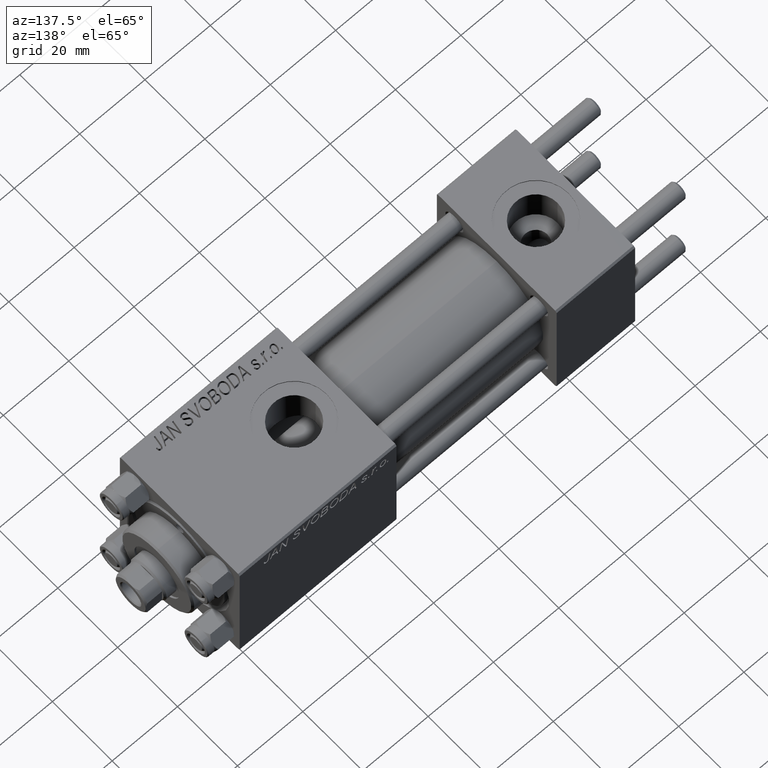
[diagram: clean part render]
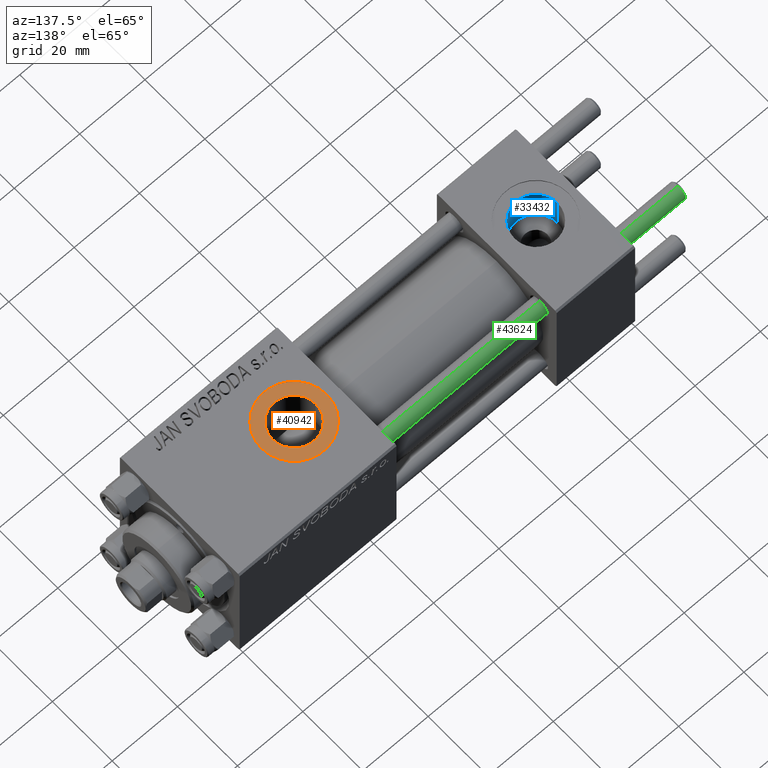
[diagram: same view with three faces highlighted in distinct colors, each labeled with its STEP entity id]
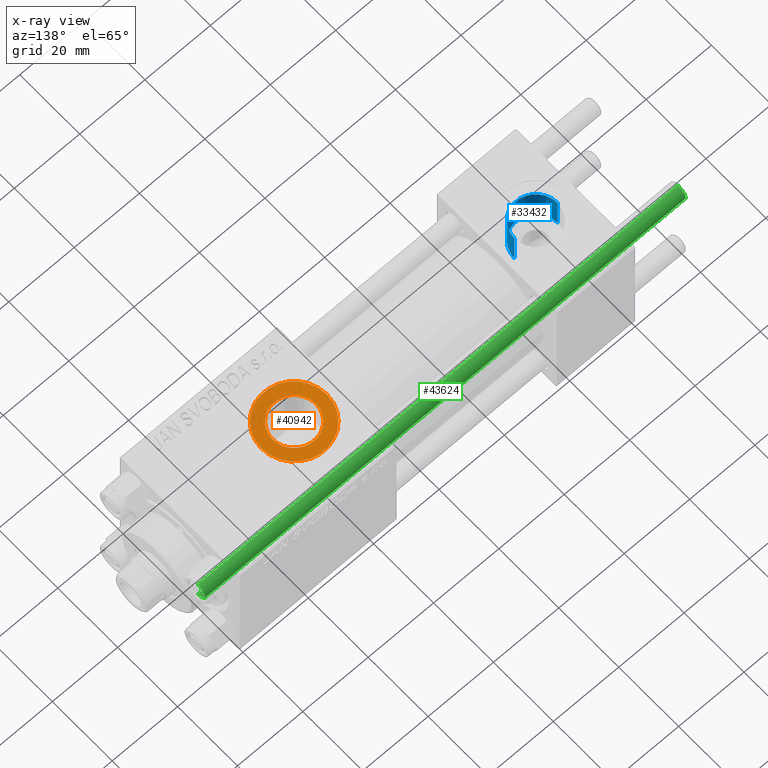
[diagram: x-ray of the same camera — body ghosted, the three highlighted faces saturated]
A machine part, auxiliary view with three faces highlighted in distinct colors.
The next image is the same camera in x-ray (body ghosted, the three faces saturated) — at least one of them is partly hidden behind the body in this view.
Their STEP definitions:

[orange] entity #40942 — the highlighted planar face has unit normal (0, 0, 1).
#3810 = VERTEX_POINT ( 'NONE', #20548 ) ;
#3993 = AXIS2_PLACEMENT_3D ( 'NONE', #5801, #17676, #21204 ) ;
#5214 = VERTEX_POINT ( 'NONE', #32572 ) ;
#5801 = CARTESIAN_POINT ( 'NONE',  ( 86.00000000000000000, -1.734723475976806897E-15, 19.80000000000000071 ) ) ;
#6778 = CIRCLE ( 'NONE', #7579, 10.00000000000000888 ) ;
#7579 = AXIS2_PLACEMENT_3D ( 'NONE', #11191, #34426, #15711 ) ;
#8215 = CARTESIAN_POINT ( 'NONE',  ( 86.00000000000000000, -1.734723475976806897E-15, 19.80000000000000071 ) ) ;
#8473 = CIRCLE ( 'NONE', #17333, 6.580000000000002736 ) ;
#8552 = ORIENTED_EDGE ( 'NONE', *, *, #16150, .T. ) ;
#9788 = ORIENTED_EDGE ( 'NONE', *, *, #32475, .T. ) ;
#10211 = PLANE ( 'NONE',  #33102 ) ;
#10231 = EDGE_LOOP ( 'NONE', ( #32643, #9788 ) ) ;
#10286 = EDGE_CURVE ( 'NONE', #41007, #3810, #8473, .T. ) ;
#11191 = CARTESIAN_POINT ( 'NONE',  ( 86.00000000000000000, -1.734723475976806897E-15, 19.80000000000000071 ) ) ;
#12359 = CARTESIAN_POINT ( 'NONE',  ( 79.42000000000000171, -1.734723475976806897E-15, 19.80000000000000071 ) ) ;
#12385 = ORIENTED_EDGE ( 'NONE', *, *, #38247, .T. ) ;
#12978 = DIRECTION ( 'NONE',  ( 0.000000000000000000, 0.000000000000000000, 1.000000000000000000 ) ) ;
#13652 = CIRCLE ( 'NONE', #3993, 10.00000000000000888 ) ;
#15711 = DIRECTION ( 'NONE',  ( 1.000000000000000000, 0.000000000000000000, 0.000000000000000000 ) ) ;
#16150 = EDGE_CURVE ( 'NONE', #27279, #5214, #6778, .T. ) ;
#17333 = AXIS2_PLACEMENT_3D ( 'NONE', #33303, #29503, #37331 ) ;
#17676 = DIRECTION ( 'NONE',  ( 0.000000000000000000, 0.000000000000000000, 1.000000000000000000 ) ) ;
#20548 = CARTESIAN_POINT ( 'NONE',  ( 92.58000000000001251, -9.289058821378482497E-16, 19.80000000000000071 ) ) ;
#21204 = DIRECTION ( 'NONE',  ( 1.000000000000000000, 0.000000000000000000, 0.000000000000000000 ) ) ;
#21853 = EDGE_LOOP ( 'NONE', ( #8552, #12385 ) ) ;
#21904 = CARTESIAN_POINT ( 'NONE',  ( 96.00000000000001421, -1.734723475976806897E-15, 19.80000000000000071 ) ) ;
#24105 = DIRECTION ( 'NONE',  ( 1.000000000000000000, 0.000000000000000000, 0.000000000000000000 ) ) ;
#24892 = CIRCLE ( 'NONE', #49905, 6.580000000000002736 ) ;
#25345 = DIRECTION ( 'NONE',  ( 1.000000000000000000, 0.000000000000000000, -0.000000000000000000 ) ) ;
#27279 = VERTEX_POINT ( 'NONE', #21904 ) ;
#27647 = DIRECTION ( 'NONE',  ( -0.000000000000000000, -0.000000000000000000, -1.000000000000000000 ) ) ;
#29503 = DIRECTION ( 'NONE',  ( -0.000000000000000000, -0.000000000000000000, -1.000000000000000000 ) ) ;
#32475 = EDGE_CURVE ( 'NONE', #3810, #41007, #24892, .T. ) ;
#32572 = CARTESIAN_POINT ( 'NONE',  ( 76.00000000000000000, -5.100766768294525560E-16, 19.80000000000000071 ) ) ;
#32643 = ORIENTED_EDGE ( 'NONE', *, *, #10286, .T. ) ;
#33102 = AXIS2_PLACEMENT_3D ( 'NONE', #48574, #12978, #25345 ) ;
#33188 = FACE_OUTER_BOUND ( 'NONE', #21853, .T. ) ;
#33303 = CARTESIAN_POINT ( 'NONE',  ( 86.00000000000000000, -1.734723475976806897E-15, 19.80000000000000071 ) ) ;
#34426 = DIRECTION ( 'NONE',  ( 0.000000000000000000, 0.000000000000000000, 1.000000000000000000 ) ) ;
#37331 = DIRECTION ( 'NONE',  ( 1.000000000000000000, 0.000000000000000000, 0.000000000000000000 ) ) ;
#38247 = EDGE_CURVE ( 'NONE', #5214, #27279, #13652, .T. ) ;
#40505 = FACE_BOUND ( 'NONE', #10231, .T. ) ;
#40942 = ADVANCED_FACE ( 'NONE', ( #40505, #33188 ), #10211, .T. ) ;
#41007 = VERTEX_POINT ( 'NONE', #12359 ) ;
#48574 = CARTESIAN_POINT ( 'NONE',  ( 86.00000000000000000, -1.734723475976806897E-15, 19.80000000000000071 ) ) ;
#49905 = AXIS2_PLACEMENT_3D ( 'NONE', #8215, #27647, #24105 ) ;

[blue] entity #33432 — the highlighted cylindrical surface (edge-blend (fillet) strip) has radius 6.58 mm, axis along (0, 0, 1).
#1486 = LINE ( 'NONE', #40877, #28375 ) ;
#3811 = CARTESIAN_POINT ( 'NONE',  ( 12.00000000000000000, 1.540743955509788682E-30, 9.199999999999995737 ) ) ;
#5633 = DIRECTION ( 'NONE',  ( 0.000000000000000000, 0.000000000000000000, 1.000000000000000000 ) ) ;
#5885 = DIRECTION ( 'NONE',  ( 1.000000000000000000, 0.000000000000000000, 0.000000000000000000 ) ) ;
#6818 = AXIS2_PLACEMENT_3D ( 'NONE', #41961, #7363, #22755 ) ;
#7363 = DIRECTION ( 'NONE',  ( -0.000000000000000000, -0.000000000000000000, -1.000000000000000000 ) ) ;
#8983 = VERTEX_POINT ( 'NONE', #9625 ) ;
#9521 = EDGE_CURVE ( 'NONE', #12105, #43808, #43143, .T. ) ;
#9625 = CARTESIAN_POINT ( 'NONE',  ( 5.420000000000000817, 8.058175938389596335E-16, 9.165987261146492315 ) ) ;
#11393 = DIRECTION ( 'NONE',  ( 1.000000000000000000, 0.000000000000000000, 0.000000000000000000 ) ) ;
#12105 = VERTEX_POINT ( 'NONE', #16608 ) ;
#12120 = FACE_OUTER_BOUND ( 'NONE', #32367, .T. ) ;
#15229 = DIRECTION ( 'NONE',  ( -0.000000000000000000, -0.000000000000000000, 1.000000000000000000 ) ) ;
#16388 = ORIENTED_EDGE ( 'NONE', *, *, #17774, .T. ) ;
#16608 = CARTESIAN_POINT ( 'NONE',  ( 5.420000000000000817, 8.058175938389596335E-16, 19.79999999999999716 ) ) ;
#17774 = EDGE_CURVE ( 'NONE', #19961, #8983, #32601, .T. ) ;
#19961 = VERTEX_POINT ( 'NONE', #21445 ) ;
#21445 = CARTESIAN_POINT ( 'NONE',  ( 18.57999999999999829, 1.540743955509788682E-30, 9.165987261146492315 ) ) ;
#22755 = DIRECTION ( 'NONE',  ( 1.000000000000000000, 0.000000000000000000, 0.000000000000000000 ) ) ;
#22987 = EDGE_CURVE ( 'NONE', #19961, #43808, #49828, .T. ) ;
#23778 = AXIS2_PLACEMENT_3D ( 'NONE', #36709, #5633, #5885 ) ;
#27050 = VECTOR ( 'NONE', #15229, 1000.000000000000000 ) ;
#27520 = CYLINDRICAL_SURFACE ( 'NONE', #36216, 6.579999999999999183 ) ;
#28375 = VECTOR ( 'NONE', #36327, 1000.000000000000000 ) ;
#32367 = EDGE_LOOP ( 'NONE', ( #16388, #37030, #41569, #44719 ) ) ;
#32601 = CIRCLE ( 'NONE', #6818, 6.579999999999999183 ) ;
#32712 = CARTESIAN_POINT ( 'NONE',  ( 18.57999999999999829, 1.540743955509788682E-30, 19.79999999999999716 ) ) ;
#33432 = ADVANCED_FACE ( 'NONE', ( #12120 ), #27520, .F. ) ;
#36216 = AXIS2_PLACEMENT_3D ( 'NONE', #3811, #45739, #11393 ) ;
#36327 = DIRECTION ( 'NONE',  ( -0.000000000000000000, -0.000000000000000000, 1.000000000000000000 ) ) ;
#36709 = CARTESIAN_POINT ( 'NONE',  ( 12.00000000000000000, 1.540743955509788682E-30, 19.79999999999999716 ) ) ;
#37030 = ORIENTED_EDGE ( 'NONE', *, *, #44757, .T. ) ;
#40877 = CARTESIAN_POINT ( 'NONE',  ( 5.420000000000000817, 8.058175938389596335E-16, 9.199999999999995737 ) ) ;
#41569 = ORIENTED_EDGE ( 'NONE', *, *, #9521, .T. ) ;
#41961 = CARTESIAN_POINT ( 'NONE',  ( 12.00000000000000000, 1.540743955509788682E-30, 9.165987261146492315 ) ) ;
#42490 = CARTESIAN_POINT ( 'NONE',  ( 18.57999999999999829, 1.540743955509788682E-30, 9.199999999999995737 ) ) ;
#43143 = CIRCLE ( 'NONE', #23778, 6.579999999999999183 ) ;
#43808 = VERTEX_POINT ( 'NONE', #32712 ) ;
#44719 = ORIENTED_EDGE ( 'NONE', *, *, #22987, .F. ) ;
#44757 = EDGE_CURVE ( 'NONE', #8983, #12105, #1486, .T. ) ;
#45739 = DIRECTION ( 'NONE',  ( -0.000000000000000000, -0.000000000000000000, 1.000000000000000000 ) ) ;
#49828 = LINE ( 'NONE', #42490, #27050 ) ;

[green] entity #43624 — the highlighted cylindrical surface (edge-blend (fillet) strip) has radius 2.5 mm, axis along (-1, -0, -0).
#3762 = CARTESIAN_POINT ( 'NONE',  ( 0.000000000000000000, 0.000000000000000000, 0.5000000000000004441 ) ) ;
#4010 = ORIENTED_EDGE ( 'NONE', *, *, #10004, .T. ) ;
#5681 = VECTOR ( 'NONE', #43781, 1000.000000000000000 ) ;
#6585 = DIRECTION ( 'NONE',  ( -0.000000000000000000, -0.000000000000000000, -1.000000000000000000 ) ) ;
#9428 = CARTESIAN_POINT ( 'NONE',  ( -2.500000000000000000, 0.000000000000000000, 0.5000000000000004441 ) ) ;
#10004 = EDGE_CURVE ( 'NONE', #19017, #11506, #32665, .T. ) ;
#11506 = VERTEX_POINT ( 'NONE', #28576 ) ;
#11725 = AXIS2_PLACEMENT_3D ( 'NONE', #20473, #35890, #16700 ) ;
#12433 = CIRCLE ( 'NONE', #21305, 2.500000000000000000 ) ;
#13507 = VERTEX_POINT ( 'NONE', #9428 ) ;
#16700 = DIRECTION ( 'NONE',  ( 1.000000000000000000, 0.000000000000000000, 0.000000000000000000 ) ) ;
#17019 = LINE ( 'NONE', #29382, #5681 ) ;
#17702 = LINE ( 'NONE', #44972, #26602 ) ;
#18038 = EDGE_CURVE ( 'NONE', #41165, #13507, #12433, .T. ) ;
#18669 = AXIS2_PLACEMENT_3D ( 'NONE', #41838, #26433, #38298 ) ;
#19017 = VERTEX_POINT ( 'NONE', #38851 ) ;
#19646 = DIRECTION ( 'NONE',  ( 1.000000000000000000, 0.000000000000000000, 0.000000000000000000 ) ) ;
#19948 = CARTESIAN_POINT ( 'NONE',  ( 2.500000000000000000, 3.061616997868383141E-16, 0.5000000000000004441 ) ) ;
#20473 = CARTESIAN_POINT ( 'NONE',  ( 0.000000000000000000, 0.000000000000000000, 147.5000000000000284 ) ) ;
#21305 = AXIS2_PLACEMENT_3D ( 'NONE', #3762, #34578, #19646 ) ;
#25926 = CYLINDRICAL_SURFACE ( 'NONE', #18669, 2.500000000000000000 ) ;
#26433 = DIRECTION ( 'NONE',  ( -0.000000000000000000, -0.000000000000000000, -1.000000000000000000 ) ) ;
#26602 = VECTOR ( 'NONE', #6585, 1000.000000000000000 ) ;
#28576 = CARTESIAN_POINT ( 'NONE',  ( 2.500000000000000000, 3.061616997868383141E-16, 147.5000000000000284 ) ) ;
#29382 = CARTESIAN_POINT ( 'NONE',  ( 2.500000000000000000, 3.061616997868383141E-16, 148.0000000000000000 ) ) ;
#29963 = FACE_OUTER_BOUND ( 'NONE', #42002, .T. ) ;
#31452 = ORIENTED_EDGE ( 'NONE', *, *, #40058, .F. ) ;
#32665 = CIRCLE ( 'NONE', #11725, 2.500000000000000000 ) ;
#34578 = DIRECTION ( 'NONE',  ( -0.000000000000000000, -0.000000000000000000, 1.000000000000000000 ) ) ;
#35890 = DIRECTION ( 'NONE',  ( 0.000000000000000000, 0.000000000000000000, -1.000000000000000000 ) ) ;
#38298 = DIRECTION ( 'NONE',  ( -1.000000000000000000, 0.000000000000000000, 0.000000000000000000 ) ) ;
#38851 = CARTESIAN_POINT ( 'NONE',  ( -2.500000000000000000, 0.000000000000000000, 147.5000000000000284 ) ) ;
#39140 = ORIENTED_EDGE ( 'NONE', *, *, #40945, .T. ) ;
#40058 = EDGE_CURVE ( 'NONE', #19017, #13507, #17702, .T. ) ;
#40945 = EDGE_CURVE ( 'NONE', #11506, #41165, #17019, .T. ) ;
#41165 = VERTEX_POINT ( 'NONE', #19948 ) ;
#41323 = ORIENTED_EDGE ( 'NONE', *, *, #18038, .T. ) ;
#41838 = CARTESIAN_POINT ( 'NONE',  ( 0.000000000000000000, 0.000000000000000000, 148.0000000000000000 ) ) ;
#42002 = EDGE_LOOP ( 'NONE', ( #4010, #39140, #41323, #31452 ) ) ;
#43624 = ADVANCED_FACE ( 'NONE', ( #29963 ), #25926, .T. ) ;
#43781 = DIRECTION ( 'NONE',  ( -0.000000000000000000, -0.000000000000000000, -1.000000000000000000 ) ) ;
#44972 = CARTESIAN_POINT ( 'NONE',  ( -2.500000000000000000, 0.000000000000000000, 148.0000000000000000 ) ) ;